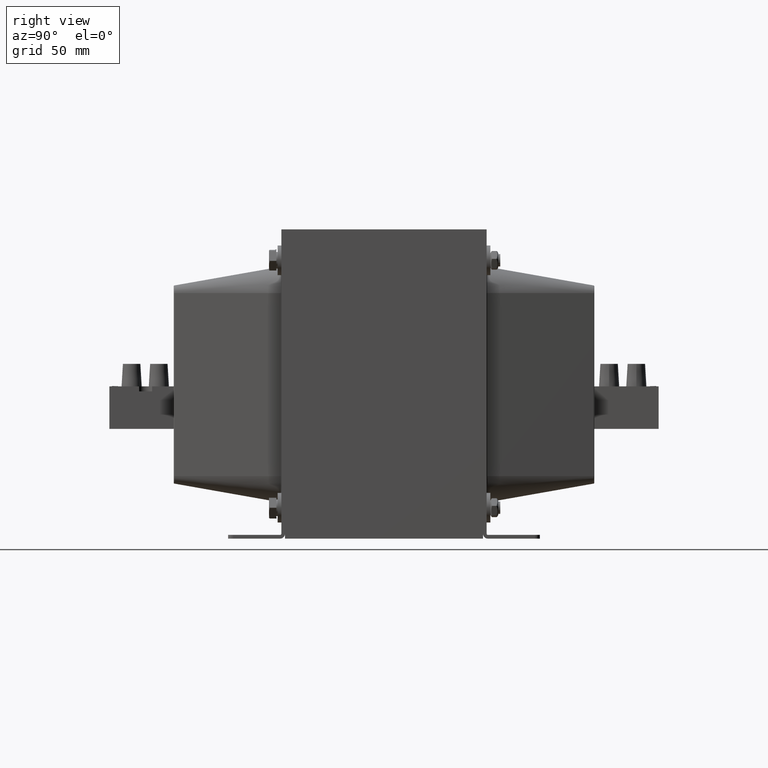
[diagram: clean part render]
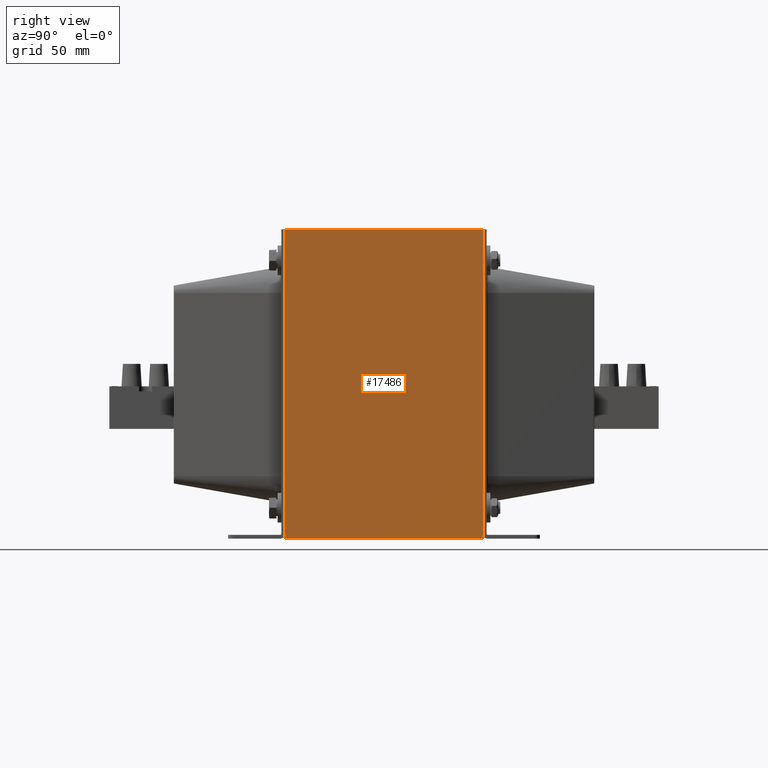
[diagram: same view with one face highlighted and labeled with its STEP entity id]
A machine part, right view. The second image highlights one B-rep face of the part: STEP entity #17486.
In plain terms, the highlighted planar face has unit normal (1, -0, -0).
Its self-contained STEP definition (entity closure, byte-faithful):
#1608=PLANE('',#19228);
#3386=LINE('',#40064,#5192);
#3405=LINE('',#40111,#5211);
#3406=LINE('',#40113,#5212);
#3407=LINE('',#40114,#5213);
#5192=VECTOR('',#23423,10.);
#5211=VECTOR('',#23460,1.);
#5212=VECTOR('',#23461,1.);
#5213=VECTOR('',#23462,1.);
#6283=FACE_OUTER_BOUND('',#7386,.T.);
#7386=EDGE_LOOP('',(#16468,#16469,#16470,#16471));
#9276=VERTEX_POINT('',#40057);
#9279=VERTEX_POINT('',#40062);
#9298=VERTEX_POINT('',#40110);
#9299=VERTEX_POINT('',#40112);
#11671=EDGE_CURVE('',#9279,#9276,#3386,.T.);
#11694=EDGE_CURVE('',#9279,#9298,#3405,.T.);
#11695=EDGE_CURVE('',#9298,#9299,#3406,.T.);
#11696=EDGE_CURVE('',#9276,#9299,#3407,.T.);
#16468=ORIENTED_EDGE('',*,*,#11694,.T.);
#16469=ORIENTED_EDGE('',*,*,#11695,.T.);
#16470=ORIENTED_EDGE('',*,*,#11696,.F.);
#16471=ORIENTED_EDGE('',*,*,#11671,.F.);
#17486=ADVANCED_FACE('',(#6283),#1608,.T.);
#19228=AXIS2_PLACEMENT_3D('',#40109,#23458,#23459);
#23423=DIRECTION('',(0.,-6.12323399573677E-17,-1.));
#23458=DIRECTION('center_axis',(1.,0.,0.));
#23459=DIRECTION('ref_axis',(0.,1.,-6.12323399573677E-17));
#23460=DIRECTION('',(0.,-1.,6.12323399573677E-17));
#23461=DIRECTION('',(4.08706385343393E-75,2.97939708235445E-46,-1.));
#23462=DIRECTION('',(0.,-1.,6.12323399573677E-17));
#40057=CARTESIAN_POINT('',(765.285047547942,-254.691057216078,-37.5));
#40062=CARTESIAN_POINT('',(765.285047547942,-254.691057216078,87.5));
#40064=CARTESIAN_POINT('',(765.285047547942,-254.691057216078,87.5));
#40109=CARTESIAN_POINT('Origin',(765.285047547942,-234.691057216078,87.5));
#40110=CARTESIAN_POINT('',(765.285047547942,-334.691057216078,87.5));
#40111=CARTESIAN_POINT('',(765.285047547942,-234.691057216078,87.5));
#40112=CARTESIAN_POINT('',(765.285047547942,-334.691057216078,-37.5));
#40113=CARTESIAN_POINT('',(765.285047547942,-334.691057216079,-37.5));
#40114=CARTESIAN_POINT('',(765.285047547942,-234.691057216078,-37.5));